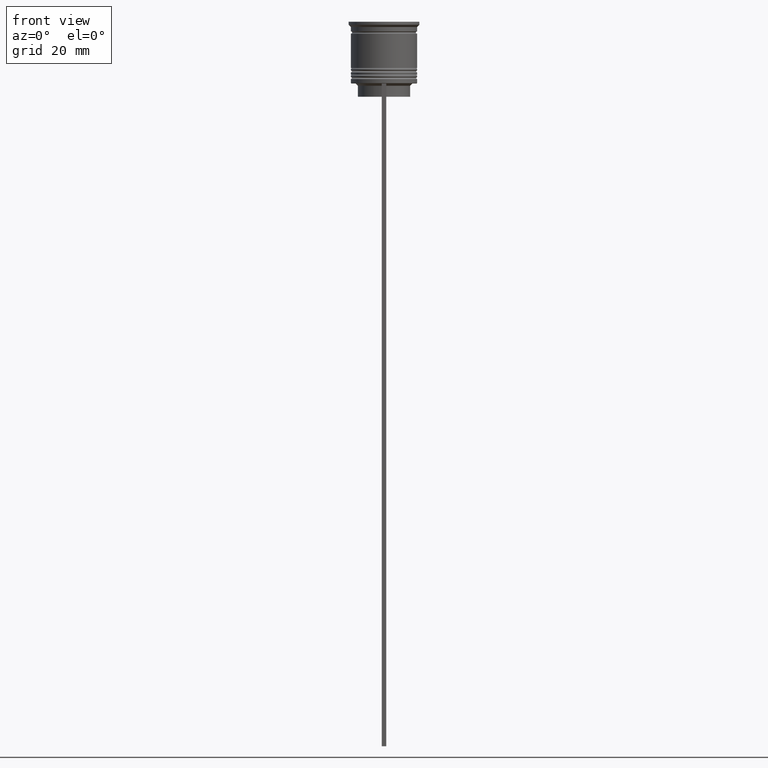
[diagram: clean part render]
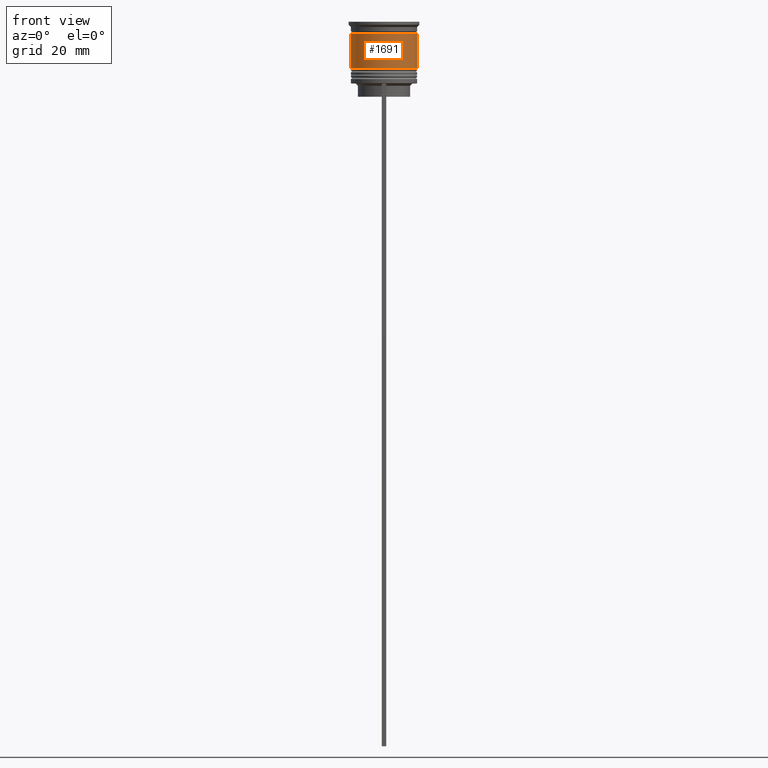
[diagram: same view with one face highlighted and labeled with its STEP entity id]
A machine part, front view. The second image highlights one B-rep face of the part: STEP entity #1691.
In plain terms, the highlighted cylindrical surface (edge-blend (fillet) strip) has radius 7.5 mm, axis along (-0, -0, 1).
Its self-contained STEP definition (entity closure, byte-faithful):
#3 = CIRCLE ( 'NONE', #1424, 7.499999999999998224 ) ;
#13 = VERTEX_POINT ( 'NONE', #1228 ) ;
#223 = EDGE_CURVE ( 'NONE', #647, #13, #574, .T. ) ;
#302 = CARTESIAN_POINT ( 'NONE',  ( -7.499999999999998224, 9.184850993605145972E-16, -2.700000000000001510 ) ) ;
#471 = DIRECTION ( 'NONE',  ( -0.000000000000000000, -0.000000000000000000, 1.000000000000000000 ) ) ;
#558 = CARTESIAN_POINT ( 'NONE',  ( 0.000000000000000000, 0.000000000000000000, 0.000000000000000000 ) ) ;
#574 = CIRCLE ( 'NONE', #2225, 7.500000000000001776 ) ;
#647 = VERTEX_POINT ( 'NONE', #1625 ) ;
#772 = EDGE_CURVE ( 'NONE', #2489, #830, #3, .T. ) ;
#790 = AXIS2_PLACEMENT_3D ( 'NONE', #558, #920, #1084 ) ;
#830 = VERTEX_POINT ( 'NONE', #2289 ) ;
#837 = ORIENTED_EDGE ( 'NONE', *, *, #1490, .T. ) ;
#920 = DIRECTION ( 'NONE',  ( -0.000000000000000000, -0.000000000000000000, 1.000000000000000000 ) ) ;
#928 = DIRECTION ( 'NONE',  ( 1.000000000000000000, 0.000000000000000000, 0.000000000000000000 ) ) ;
#1002 = EDGE_CURVE ( 'NONE', #647, #2489, #1636, .T. ) ;
#1084 = DIRECTION ( 'NONE',  ( 1.000000000000000000, 0.000000000000000000, 0.000000000000000000 ) ) ;
#1102 = ORIENTED_EDGE ( 'NONE', *, *, #1002, .F. ) ;
#1109 = ORIENTED_EDGE ( 'NONE', *, *, #223, .T. ) ;
#1128 = CYLINDRICAL_SURFACE ( 'NONE', #790, 7.500000000000000000 ) ;
#1165 = DIRECTION ( 'NONE',  ( -0.000000000000000000, -0.000000000000000000, 1.000000000000000000 ) ) ;
#1181 = VECTOR ( 'NONE', #2345, 1000.000000000000000 ) ;
#1228 = CARTESIAN_POINT ( 'NONE',  ( 7.500000000000001776, 0.000000000000000000, -10.50000000000000000 ) ) ;
#1244 = DIRECTION ( 'NONE',  ( 1.000000000000000000, 0.000000000000000000, 0.000000000000000000 ) ) ;
#1252 = CARTESIAN_POINT ( 'NONE',  ( -7.500000000000000000, 9.184850993605147944E-16, 0.000000000000000000 ) ) ;
#1424 = AXIS2_PLACEMENT_3D ( 'NONE', #1857, #1482, #928 ) ;
#1428 = VECTOR ( 'NONE', #1165, 1000.000000000000000 ) ;
#1482 = DIRECTION ( 'NONE',  ( -0.000000000000000000, -0.000000000000000000, 1.000000000000000000 ) ) ;
#1490 = EDGE_CURVE ( 'NONE', #13, #830, #1572, .T. ) ;
#1572 = LINE ( 'NONE', #2291, #1428 ) ;
#1625 = CARTESIAN_POINT ( 'NONE',  ( -7.500000000000001776, 9.184850993605149917E-16, -10.50000000000000000 ) ) ;
#1636 = LINE ( 'NONE', #1252, #1181 ) ;
#1691 = ADVANCED_FACE ( 'NONE', ( #1848 ), #1128, .T. ) ;
#1848 = FACE_OUTER_BOUND ( 'NONE', #2443, .T. ) ;
#1857 = CARTESIAN_POINT ( 'NONE',  ( 0.000000000000000000, 0.000000000000000000, -2.700000000000001510 ) ) ;
#2075 = ORIENTED_EDGE ( 'NONE', *, *, #772, .F. ) ;
#2192 = CARTESIAN_POINT ( 'NONE',  ( 0.000000000000000000, 0.000000000000000000, -10.50000000000000000 ) ) ;
#2225 = AXIS2_PLACEMENT_3D ( 'NONE', #2192, #471, #1244 ) ;
#2289 = CARTESIAN_POINT ( 'NONE',  ( 7.499999999999998224, 0.000000000000000000, -2.700000000000001510 ) ) ;
#2291 = CARTESIAN_POINT ( 'NONE',  ( 7.500000000000000000, 0.000000000000000000, 0.000000000000000000 ) ) ;
#2345 = DIRECTION ( 'NONE',  ( -0.000000000000000000, -0.000000000000000000, 1.000000000000000000 ) ) ;
#2443 = EDGE_LOOP ( 'NONE', ( #1102, #1109, #837, #2075 ) ) ;
#2489 = VERTEX_POINT ( 'NONE', #302 ) ;